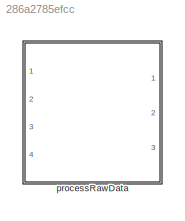
MODEL slx_286a2785efcc
KIND library
CONFIG AbsTol = auto
CONFIG EnableMultiTasking = off
CONFIG FixedStep = auto
CONFIG MaxStep = auto
CONFIG MinStep = auto
CONFIG RelTol = 1e-3
CONFIG SampleTimeConstraint = Unconstrained
CONFIG Solver = VariableStepAuto
CONFIG SolverName = VariableStepAuto
CONFIG StartTime = 0.0
CONFIG StopTime = 10.0
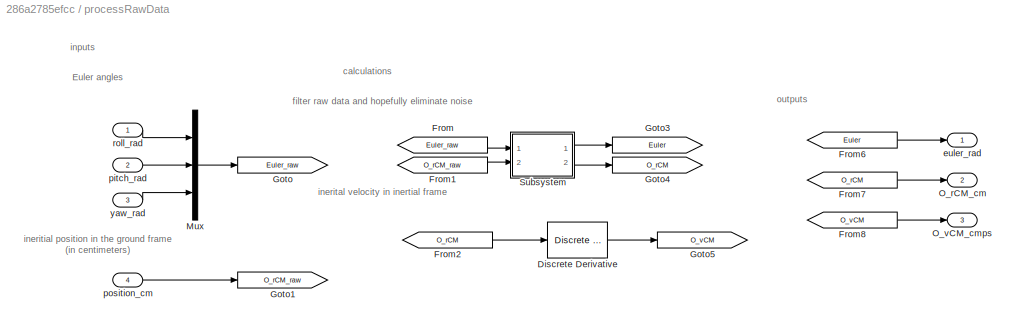
BLOCK [SubSystem] processRawData
  Ports = [4, 3]
  RequestExecContextInheritance = off
BLOCK [Reference] processRawData/Discrete Derivative  REF=simulink/Quick Insert/Discrete/Discrete Derivative
  Ports = [1, 1]
  SourceBlock = simulink/Quick Insert/Discrete/Discrete Derivative
  SourceProductBaseCode = SL
  SourceType = Discrete Derivative
BLOCK [From] processRawData/From
  GotoTag = Euler_raw
BLOCK [From] processRawData/From1
  GotoTag = O_rCM_raw
BLOCK [From] processRawData/From2
  GotoTag = O_rCM
BLOCK [From] processRawData/From6
  GotoTag = Euler
BLOCK [From] processRawData/From7
  GotoTag = O_rCM
BLOCK [From] processRawData/From8
  GotoTag = O_vCM
BLOCK [Goto] processRawData/Goto
  GotoTag = Euler_raw
BLOCK [Goto] processRawData/Goto1
  GotoTag = O_rCM_raw
BLOCK [Goto] processRawData/Goto3
  GotoTag = Euler
BLOCK [Goto] processRawData/Goto4
  GotoTag = O_rCM
BLOCK [Goto] processRawData/Goto5
  GotoTag = O_vCM
BLOCK [Mux] processRawData/Mux
  DisplayOption = bar
  Inputs = 3
  Ports = [3, 1]
BLOCK [Outport] processRawData/O_rCM_cm
  Port = 2
BLOCK [Outport] processRawData/O_vCM_cmps
  Port = 3
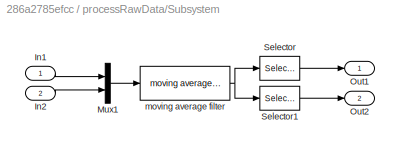
BLOCK [SubSystem] processRawData/Subsystem
  Ports = [2, 2]
  RequestExecContextInheritance = off
BLOCK [Inport] processRawData/Subsystem/In1
BLOCK [Inport] processRawData/Subsystem/In2
  Port = 2
BLOCK [Mux] processRawData/Subsystem/Mux1
  DisplayOption = bar
  Inputs = 2
  Ports = [2, 1]
BLOCK [Outport] processRawData/Subsystem/Out1
BLOCK [Outport] processRawData/Subsystem/Out2
  Port = 2
BLOCK [Selector] processRawData/Subsystem/Selector
  IndexOptions = Index vector (dialog)
  Indices = [1 2 3]
  InputPortWidth = 6
  OutputSizes = 1
  Ports = [1, 1]
BLOCK [Selector] processRawData/Subsystem/Selector1
  IndexOptions = Index vector (dialog)
  Indices = [4 5 6]
  InputPortWidth = 6
  OutputSizes = 1
  Ports = [1, 1]
BLOCK [Reference] processRawData/Subsystem/moving average filter  REF=MovingAverageFilter/moving average filter
  Ports = [1, 1]
  SourceBlock = MovingAverageFilter/moving average filter
BLOCK [Outport] processRawData/euler_rad
BLOCK [Inport] processRawData/pitch_rad
  Port = 2
BLOCK [Inport] processRawData/position_cm
  Port = 4
BLOCK [Inport] processRawData/roll_rad
BLOCK [Inport] processRawData/yaw_rad
  Port = 3
ANNOTATION processRawData: Euler angles
ANNOTATION processRawData: calculations
ANNOTATION processRawData: filter raw data and hopefully eliminate noise
ANNOTATION processRawData: inerital velocity in inertial frame
ANNOTATION processRawData: ineritial position in the ground frame (in centimeters)
ANNOTATION processRawData: inputs
ANNOTATION processRawData: outputs
LINE processRawData/Discrete Derivative:1 -> processRawData/Goto5:1
LINE processRawData/From1:1 -> processRawData/Subsystem:2
LINE processRawData/From2:1 -> processRawData/Discrete Derivative:1
LINE processRawData/From6:1 -> processRawData/euler_rad:1
LINE processRawData/From7:1 -> processRawData/O_rCM_cm:1
LINE processRawData/From8:1 -> processRawData/O_vCM_cmps:1
LINE processRawData/From:1 -> processRawData/Subsystem:1
LINE processRawData/Mux:1 -> processRawData/Goto:1
LINE processRawData/Subsystem/In1:1 -> processRawData/Subsystem/Mux1:1
LINE processRawData/Subsystem/In2:1 -> processRawData/Subsystem/Mux1:2
LINE processRawData/Subsystem/Mux1:1 -> processRawData/Subsystem/moving average filter:1
LINE processRawData/Subsystem/Selector1:1 -> processRawData/Subsystem/Out2:1
LINE processRawData/Subsystem/Selector:1 -> processRawData/Subsystem/Out1:1
NET processRawData/Subsystem/moving average filter:1 -> processRawData/Subsystem/Selector1:1, processRawData/Subsystem/Selector:1
LINE processRawData/Subsystem:1 -> processRawData/Goto3:1
LINE processRawData/Subsystem:2 -> processRawData/Goto4:1
LINE processRawData/pitch_rad:1 -> processRawData/Mux:2
LINE processRawData/position_cm:1 -> processRawData/Goto1:1
LINE processRawData/roll_rad:1 -> processRawData/Mux:1
LINE processRawData/yaw_rad:1 -> processRawData/Mux:3
note: NET lines group one-source signal fan-out (src -> all destinations, sorted); 1:1 wires keep LINE
